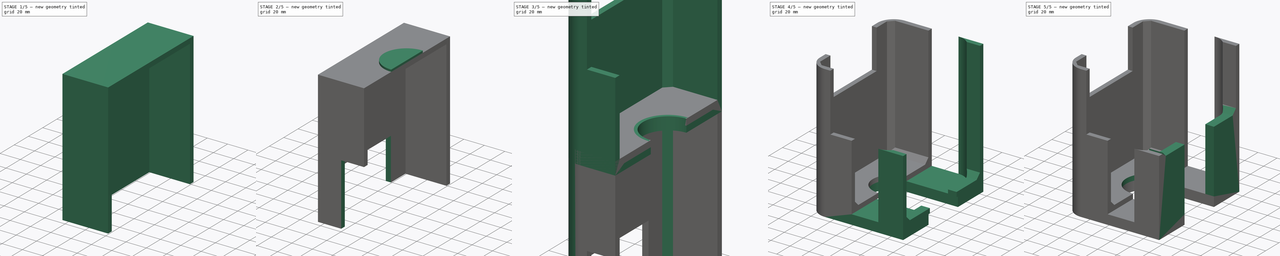
[diagram: build sequence overview — one tinted view per stage of 5, left to right]
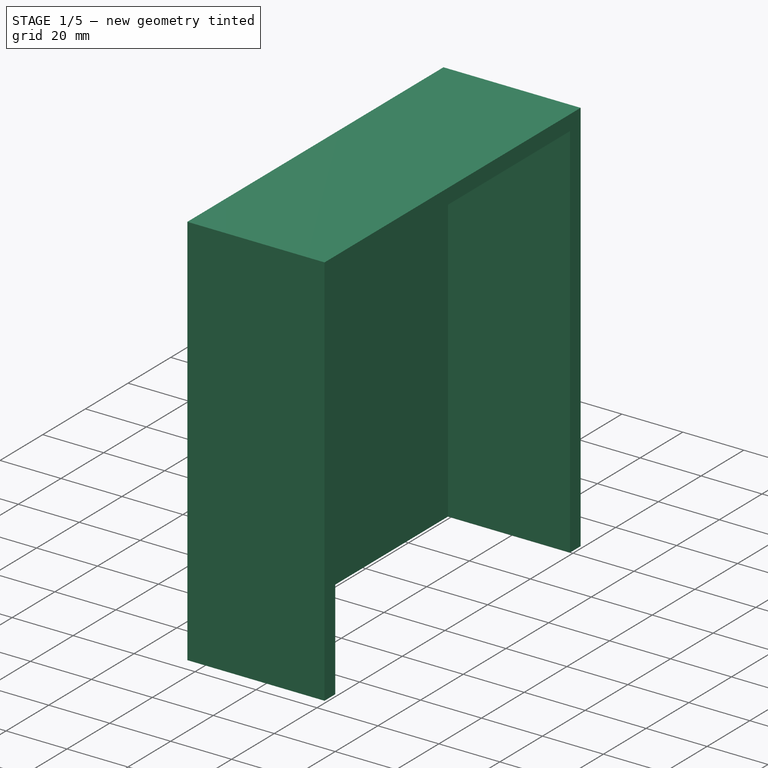
[diagram: stage 1 of 5 — iso view after this stage's code; geometry added in this stage tinted green]
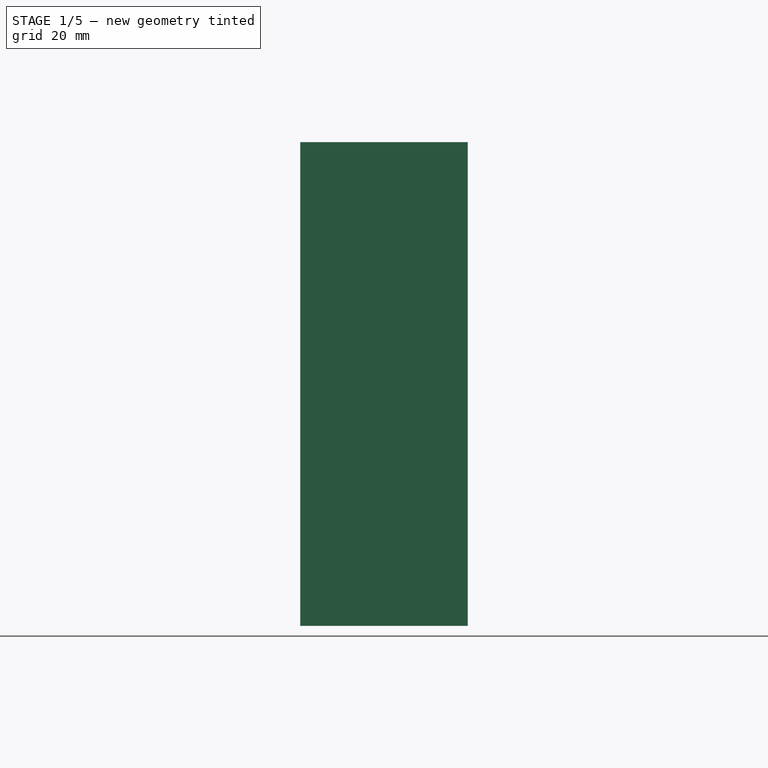
[diagram: stage 1 of 5 — front view after this stage's code; geometry added in this stage tinted green]
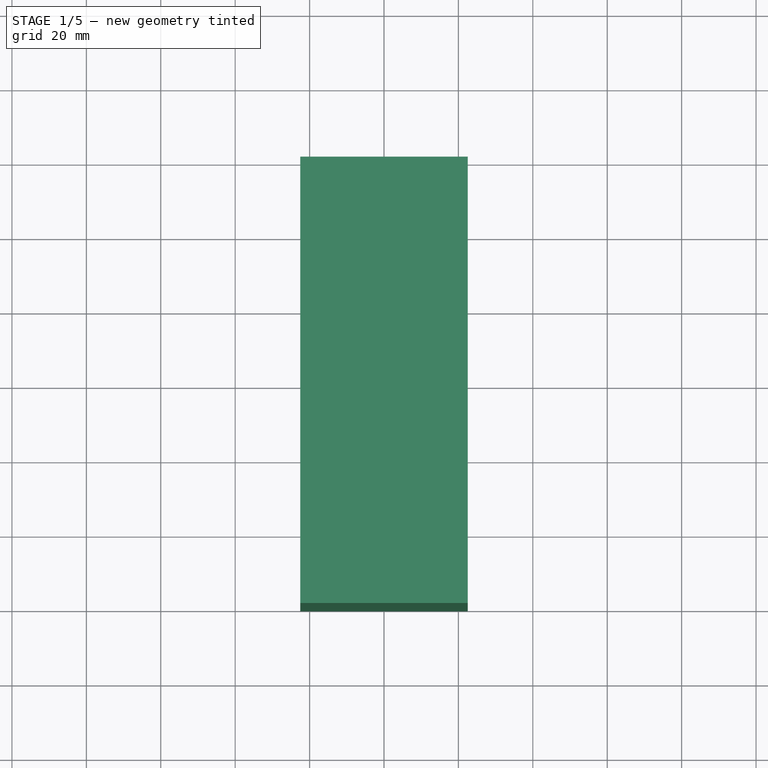
[diagram: stage 1 of 5 — top view after this stage's code; geometry added in this stage tinted green]
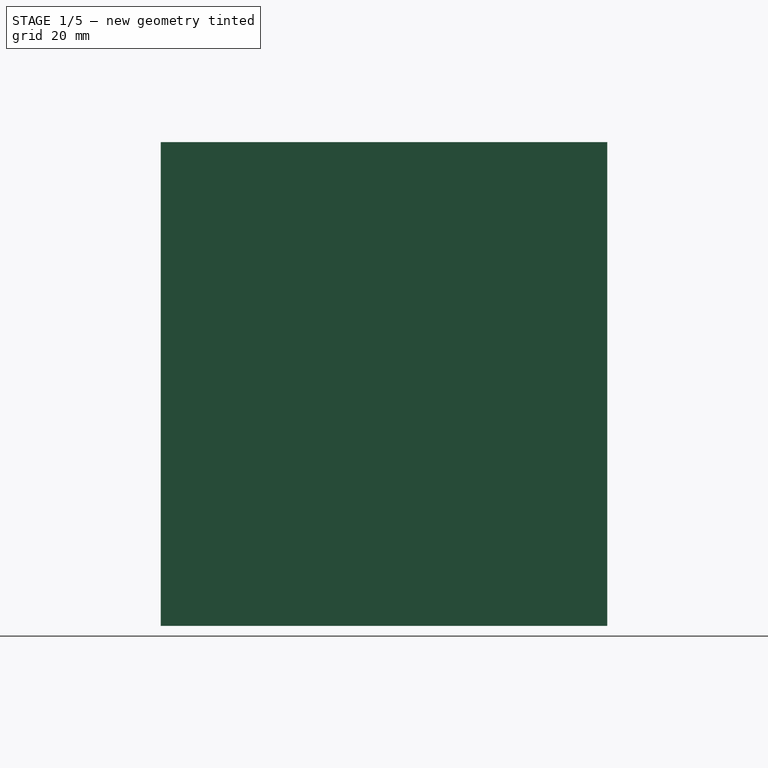
[diagram: stage 1 of 5 — right view after this stage's code; geometry added in this stage tinted green]
FCSTD DOCUMENT  (FreeCAD 1.0R39109 (Git))
Label: protection of reactor
License: All rights reserved
LicenseURL: https://en.wikipedia.org/wiki/All_rights_reserved
objects: Sketcher::SketchObject×9, PartDesign::Pad×8, PartDesign::Pocket×7, PartDesign::Body×4, PartDesign::FeatureBase×3, Part::Refine×3, PartDesign::Fillet×1, PartDesign::Chamfer×1, Part::Feature×1, Part::FeaturePython×1
note: 84 computed .brp shape members not serialized (recipe doc carries the construction recipe); baked Part::Feature solids carry a one-line shape summary decoded from their .brp

FEATURE [Sketcher::SketchObject] Sketch
  ArcFitTolerance = 1e-06
  AttachmentSupport = -> [XY_Plane]
  FullyConstrained = true
  MakeInternals = false
  MapMode = 5
  sketch-geometry (5):
    g0: LineSegment StartX=22.5 StartY=-60 StartZ=0 EndX=22.5 EndY=60 EndZ=0
    g1: LineSegment StartX=22.5 StartY=60 StartZ=0 EndX=-22.5 EndY=60 EndZ=0
    g2: LineSegment StartX=-22.5 StartY=60 StartZ=0 EndX=-22.5 EndY=-60 EndZ=0
    g3: LineSegment StartX=-22.5 StartY=-60 StartZ=0 EndX=22.5 EndY=-60 EndZ=0
    g4: GeomPoint [constr] X=0 Y=0 Z=0
  constraints (12):
    c: Coincident(g0,g1)
    c: Coincident(g1,g2)
    c: Coincident(g2,g3)
    c: Coincident(g3,g0)
    c: Vertical(g0)
    c: Vertical(g2)
    c: Horizontal(g1)
    c: Horizontal(g3)
    c: Symmetric(g2,g0,g4)
    c: Coincident(g4,g-1)
    c: Distance(g1) = 45
    c: Distance(g2) = 120
FEATURE [PartDesign::Pad] Pad
  Direction = (0,0,1)
  Length = 5
  Length2 = 10
  Profile = -> Sketch
  ReferenceAxis = -> Sketch [N_Axis]
  Refine = true
  Suppressed = false
  Type = 0
FEATURE [Sketcher::SketchObject] Sketch001
  ArcFitTolerance = 1e-06
  AttachmentSupport = -> [Pad]
  FullyConstrained = true
  MakeInternals = false
  MapMode = 5
  Placement = pos=(0,0,5) rot=(0,0,1;0rad)
  sketch-geometry (5):
    g0: LineSegment StartX=-17.5 StartY=-60 StartZ=0 EndX=-17.5 EndY=60 EndZ=0
    g1: LineSegment StartX=-17.5 StartY=60 StartZ=0 EndX=-22.5 EndY=60 EndZ=0
    g2: LineSegment StartX=-22.5 StartY=60 StartZ=0 EndX=-22.5 EndY=-60 EndZ=0
    g3: LineSegment StartX=-22.5 StartY=-60 StartZ=0 EndX=-17.5 EndY=-60 EndZ=0
    g4: GeomPoint [constr] X=-20 Y=0 Z=0
  constraints (13):
    c: Coincident(g0,g1)
    c: Coincident(g1,g2)
    c: Coincident(g2,g3)
    c: Coincident(g3,g0)
    c: Vertical(g0)
    c: Vertical(g2)
    c: Horizontal(g1)
    c: Horizontal(g3)
    c: Symmetric(g2,g0,g4)
    c: PointOnObject(g4,g-1)
    c: Distance(g0) = 120
    c: Distance(g1) = 5
    c: Distance(g-1,g4) = 20
FEATURE [PartDesign::Pad] Pad001
  BaseFeature = -> Pad
  Direction = (0,0,1)
  Length = 130
  Length2 = 10
  Profile = -> Sketch001
  ReferenceAxis = -> Sketch001 [N_Axis]
  Refine = true
  Reversed = true
  Suppressed = false
  Type = 0
FEATURE [Sketcher::SketchObject] Sketch002
  ArcFitTolerance = 1e-06
  AttachmentSupport = -> [Pad001]
  FullyConstrained = true
  MakeInternals = false
  MapMode = 5
  Placement = pos=(0,0,0) rot=(1,0,0;3.14159rad)
  sketch-geometry (5):
    g0: LineSegment StartX=-22.5 StartY=55 StartZ=0 EndX=22.5 EndY=55 EndZ=0
    g1: LineSegment StartX=22.5 StartY=55 StartZ=0 EndX=22.5 EndY=60 EndZ=0
    g2: LineSegment StartX=22.5 StartY=60 StartZ=0 EndX=-22.5 EndY=60 EndZ=0
    g3: LineSegment StartX=-22.5 StartY=60 StartZ=0 EndX=-22.5 EndY=55 EndZ=0
    g4: GeomPoint [constr] X=0 Y=57.5 Z=0
  constraints (13):
    c: Coincident(g0,g1)
    c: Coincident(g1,g2)
    c: Coincident(g2,g3)
    c: Coincident(g3,g0)
    c: Horizontal(g0)
    c: Horizontal(g2)
    c: Vertical(g1)
    c: Vertical(g3)
    c: Symmetric(g2,g0,g4)
    c: PointOnObject(g4,g-2)
    c: Distance(g2) = 45
    c: Distance(g1) = 5
    c: Distance(g-1,g4) = 57.5
FEATURE [PartDesign::Pad] Pad002
  BaseFeature = -> Pad001
  Direction = (0,0,-1)
  Length = 125
  Length2 = 10
  Profile = -> Sketch002
  ReferenceAxis = -> Sketch002 [N_Axis]
  Refine = true
  Suppressed = false
  Type = 0
FEATURE [Sketcher::SketchObject] Sketch003
  ArcFitTolerance = 1e-06
  AttachmentSupport = -> [Pad002]
  FullyConstrained = true
  MakeInternals = false
  MapMode = 5
  Placement = pos=(0,0,0) rot=(1,0,0;3.14159rad)
  sketch-geometry (5):
    g0: LineSegment StartX=-22.5 StartY=-55 StartZ=0 EndX=-22.5 EndY=-60 EndZ=0
    g1: LineSegment StartX=-22.5 StartY=-60 StartZ=0 EndX=22.5 EndY=-60 EndZ=0
    g2: LineSegment StartX=22.5 StartY=-60 StartZ=0 EndX=22.5 EndY=-55 EndZ=0
    g3: LineSegment StartX=22.5 StartY=-55 StartZ=0 EndX=-22.5 EndY=-55 EndZ=0
    g4: GeomPoint [constr] X=0 Y=-57.5 Z=0
  constraints (13):
    c: Coincident(g0,g1)
    c: Coincident(g1,g2)
    c: Coincident(g2,g3)
    c: Coincident(g3,g0)
    c: Vertical(g0)
    c: Vertical(g2)
    c: Horizontal(g1)
    c: Horizontal(g3)
    c: Symmetric(g2,g0,g4)
    c: PointOnObject(g4,g-2)
    c: Distance(g2) = 5
    c: Distance(g3) = 45
    c: Distance(g-1,g4) = 57.5
FEATURE [PartDesign::Pad] Pad003
  BaseFeature = -> Pad002
  Direction = (0,0,-1)
  Length = 125
  Length2 = 10
  Profile = -> Sketch003
  ReferenceAxis = -> Sketch003 [N_Axis]
  Refine = true
  Suppressed = false
  Type = 0
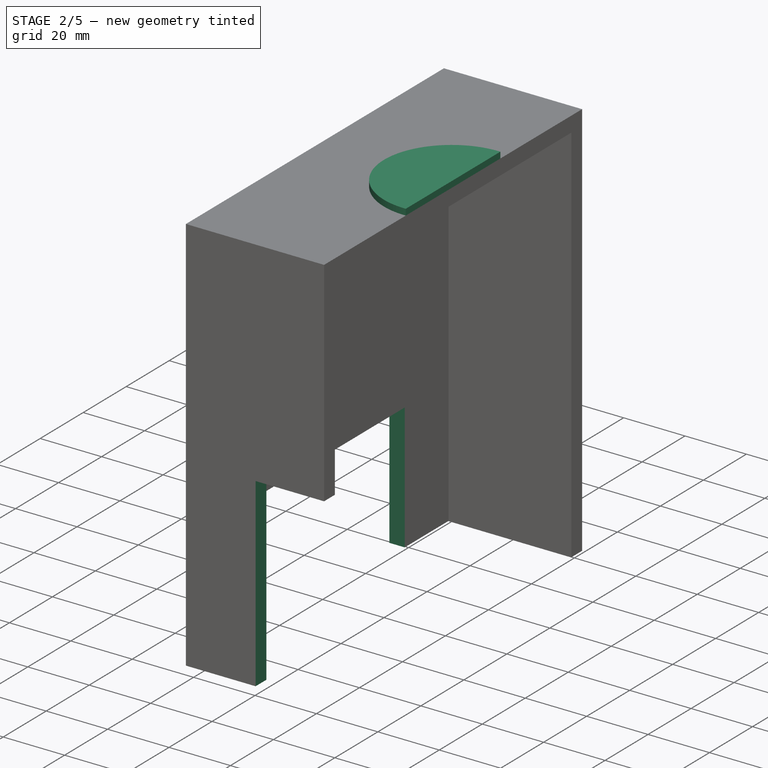
[diagram: stage 2 of 5 — iso view after this stage's code; geometry added in this stage tinted green]
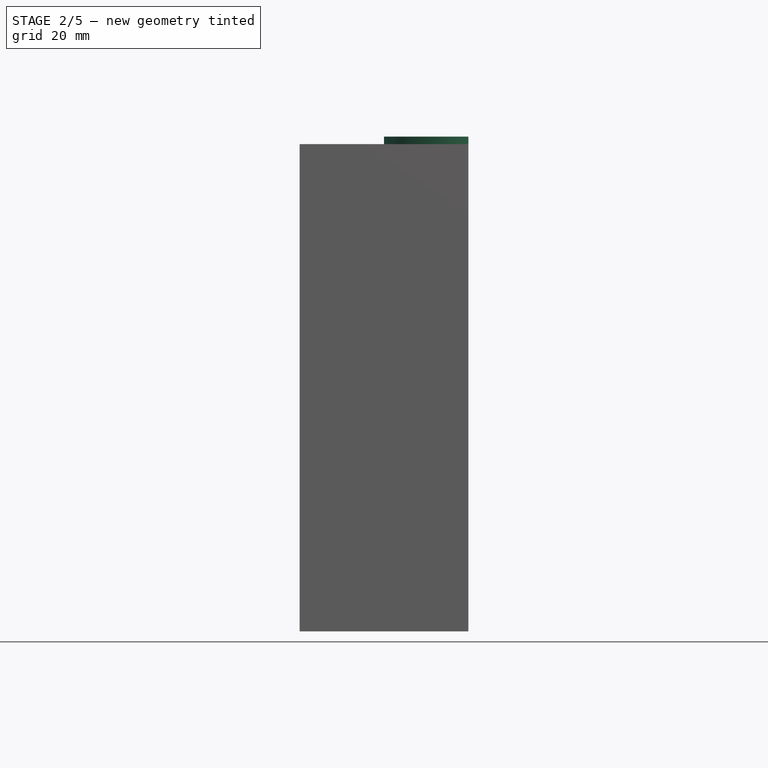
[diagram: stage 2 of 5 — front view after this stage's code; geometry added in this stage tinted green]
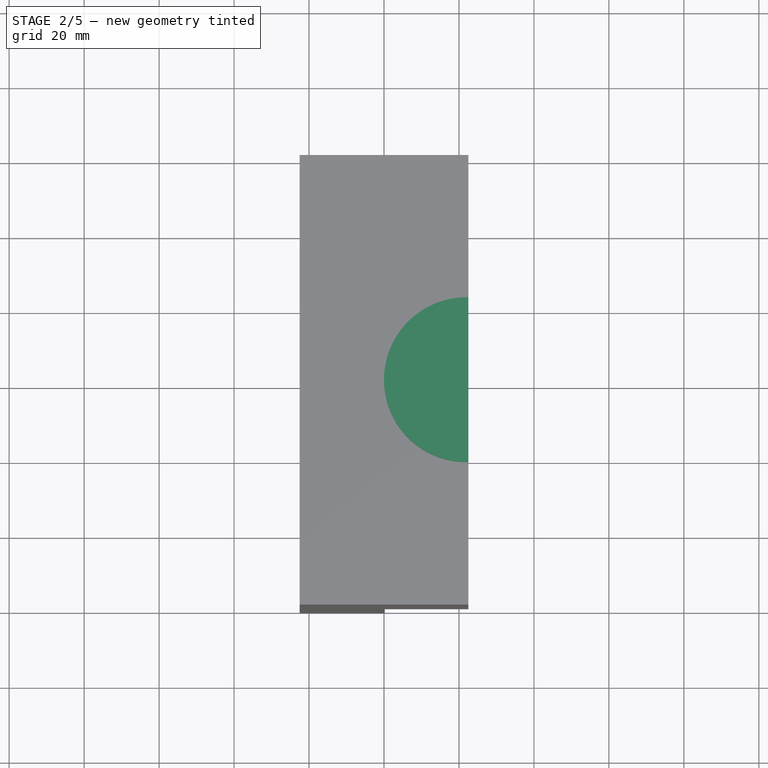
[diagram: stage 2 of 5 — top view after this stage's code; geometry added in this stage tinted green]
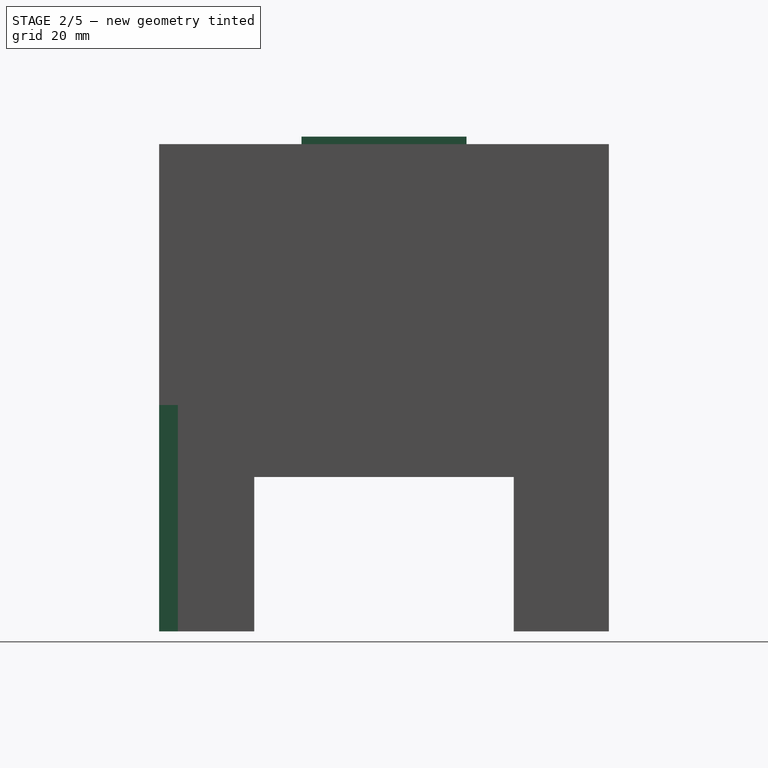
[diagram: stage 2 of 5 — right view after this stage's code; geometry added in this stage tinted green]
FEATURE [Sketcher::SketchObject] Sketch004
  ArcFitTolerance = 1e-06
  AttachmentSupport = -> [Pad003]
  FullyConstrained = false
  MakeInternals = false
  MapMode = 5
  Placement = pos=(0,-60,0) rot=(1,0,0;1.5708rad)
  sketch-geometry (5):
    g0: LineSegment StartX=0.198597 StartY=-64.5926 StartZ=0 EndX=0.198597 EndY=-138.915 EndZ=0
    g1: LineSegment StartX=0.198597 StartY=-138.915 StartZ=0 EndX=67.8513 EndY=-138.915 EndZ=0
    g2: LineSegment StartX=67.8513 StartY=-138.915 StartZ=0 EndX=67.8513 EndY=-64.5926 EndZ=0
    g3: LineSegment StartX=67.8513 StartY=-64.5926 StartZ=0 EndX=0.198597 EndY=-64.5926 EndZ=0
    g4: GeomPoint [constr] X=34.0249 Y=-101.754 Z=0
  constraints (9):
    c: Coincident(g0,g1)
    c: Coincident(g1,g2)
    c: Coincident(g2,g3)
    c: Coincident(g3,g0)
    c: Vertical(g0)
    c: Vertical(g2)
    c: Horizontal(g1)
    c: Horizontal(g3)
    c: Symmetric(g2,g0,g4)
FEATURE [PartDesign::Pocket] Pocket
  BaseFeature = -> Pad003
  Direction = (0,1,-2e-16)
  Length = 5
  Length2 = 5
  Profile = -> Sketch004
  ReferenceAxis = -> Sketch004 [N_Axis]
  Refine = true
  Suppressed = false
  Type = 0
FEATURE [Sketcher::SketchObject] Sketch005
  ArcFitTolerance = 1e-06
  AttachmentSupport = -> [Pocket]
  FullyConstrained = false
  MakeInternals = false
  MapMode = 5
  Placement = pos=(-22.5,0,0) rot=(0.57735,-0.57735,-0.57735;2.0944rad)
  sketch-geometry (5):
    g0: LineSegment StartX=34.6247 StartY=-83.8184 StartZ=0 EndX=-34.6247 EndY=-83.8184 EndZ=0
    g1: LineSegment StartX=-34.6247 StartY=-83.8184 StartZ=0 EndX=-34.6247 EndY=-128.843 EndZ=0
    g2: LineSegment StartX=-34.6247 StartY=-128.843 StartZ=0 EndX=34.6247 EndY=-128.843 EndZ=0
    g3: LineSegment StartX=34.6247 StartY=-128.843 StartZ=0 EndX=34.6247 EndY=-83.8184 EndZ=0
    g4: GeomPoint [constr] X=0 Y=-106.331 Z=0
  constraints (10):
    c: Coincident(g0,g1)
    c: Coincident(g1,g2)
    c: Coincident(g2,g3)
    c: Coincident(g3,g0)
    c: Horizontal(g0)
    c: Horizontal(g2)
    c: Vertical(g1)
    c: Vertical(g3)
    c: Symmetric(g2,g0,g4)
    c: PointOnObject(g4,g-2)
FEATURE [PartDesign::Pocket] Pocket001
  BaseFeature = -> Pocket
  Direction = (1,0,0)
  Length = 5
  Length2 = 5
  Profile = -> Sketch005
  ReferenceAxis = -> Sketch005 [N_Axis]
  Refine = true
  Suppressed = false
  Type = 0
FEATURE [Sketcher::SketchObject] Sketch006
  ArcFitTolerance = 1e-06
  AttachmentSupport = -> [Pocket001]
  FullyConstrained = true
  MakeInternals = false
  MapMode = 5
  Placement = pos=(0,0,5) rot=(0,0,1;0rad)
  sketch-geometry (1):
    g0: Circle CenterX=22 CenterY=0 CenterZ=0 NormalX=0 NormalY=0 NormalZ=1 AngleXU=0 Radius=22
  constraints (3):
    c: Diameter(g0) = 44
    c: PointOnObject(g0,g-1)
    c: Tangent(g0,g-2)
FEATURE [PartDesign::Pad] Pad004
  BaseFeature = -> Pocket001
  Direction = (0,0,1)
  Length = 2
  Length2 = 10
  Profile = -> Sketch006
  ReferenceAxis = -> Sketch006 [N_Axis]
  Refine = true
  Suppressed = false
  Type = 0
FEATURE [Sketcher::SketchObject] Sketch007
  ArcFitTolerance = 1e-06
  AttachmentSupport = -> [Pad004]
  FullyConstrained = false
  MakeInternals = false
  MapMode = 5
  Placement = pos=(0,0,7) rot=(0,0,1;0rad)
  sketch-geometry (5):
    g0: LineSegment StartX=44.5 StartY=-58.2905 StartZ=0 EndX=44.5 EndY=58.2905 EndZ=0
    g1: LineSegment StartX=44.5 StartY=58.2905 StartZ=0 EndX=22.5 EndY=58.2905 EndZ=0
    g2: LineSegment StartX=22.5 StartY=58.2905 StartZ=0 EndX=22.5 EndY=-58.2905 EndZ=0
    g3: LineSegment StartX=22.5 StartY=-58.2905 StartZ=0 EndX=44.5 EndY=-58.2905 EndZ=0
    g4: GeomPoint [constr] X=33.5 Y=0 Z=0
  constraints (12):
    c: Coincident(g0,g1)
    c: Coincident(g1,g2)
    c: Coincident(g2,g3)
    c: Coincident(g3,g0)
    c: Vertical(g0)
    c: Vertical(g2)
    c: Horizontal(g1)
    c: Horizontal(g3)
    c: Symmetric(g2,g0,g4)
    c: PointOnObject(g4,g-1)
    c: Distance(g1) = 22
    c: Distance(g-1,g4) = 33.5
FEATURE [PartDesign::Pocket] Pocket002
  BaseFeature = -> Pad004
  Direction = (0,0,-1)
  Length = 5
  Length2 = 5
  Profile = -> Sketch007
  ReferenceAxis = -> Sketch007 [N_Axis]
  Refine = true
  Suppressed = false
  Type = 0
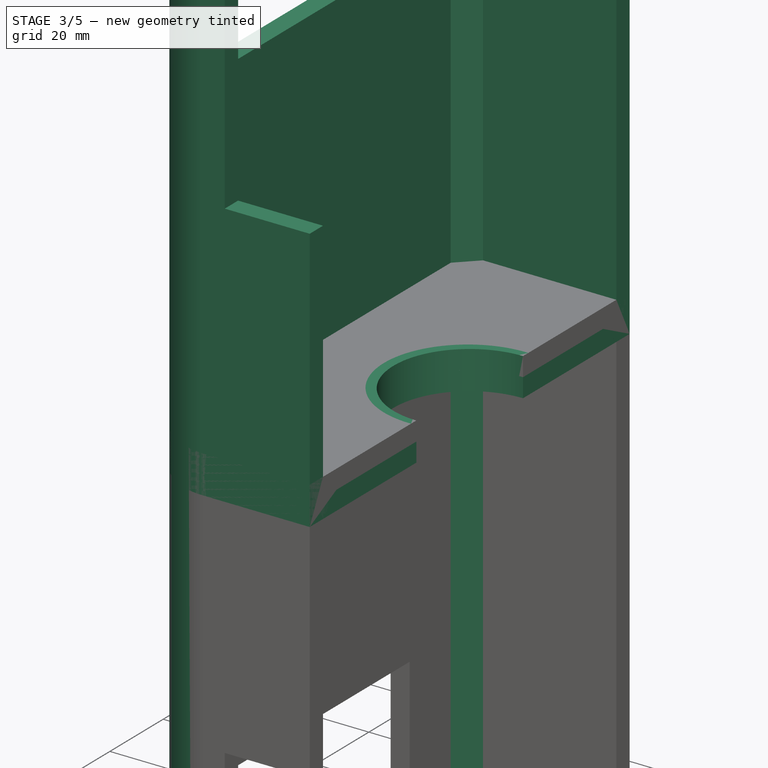
[diagram: stage 3 of 5 — iso view after this stage's code; geometry added in this stage tinted green]
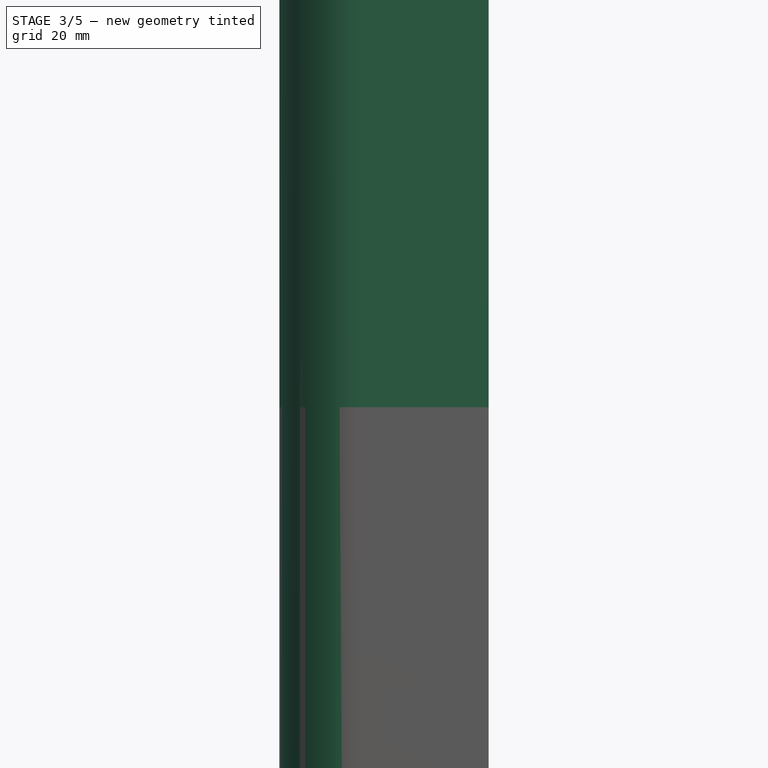
[diagram: stage 3 of 5 — front view after this stage's code; geometry added in this stage tinted green]
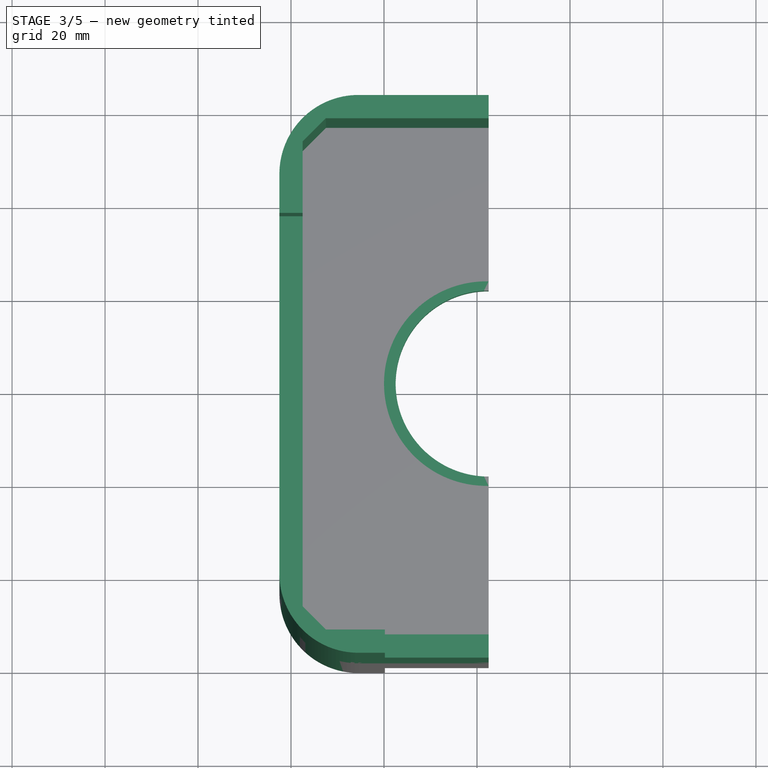
[diagram: stage 3 of 5 — top view after this stage's code; geometry added in this stage tinted green]
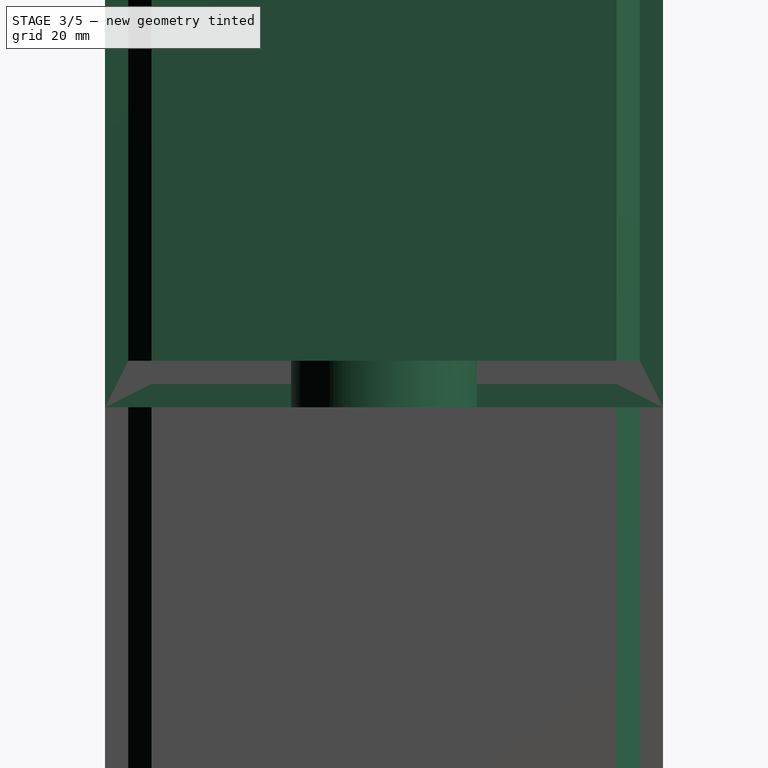
[diagram: stage 3 of 5 — right view after this stage's code; geometry added in this stage tinted green]
FEATURE [Sketcher::SketchObject] Sketch008
  ArcFitTolerance = 1e-06
  AttachmentSupport = -> [Pocket002]
  FullyConstrained = true
  MakeInternals = false
  MapMode = 5
  Placement = pos=(0,0,7) rot=(0,0,1;0rad)
  sketch-geometry (1):
    g0: Circle CenterX=22.5 CenterY=0 CenterZ=0 NormalX=0 NormalY=0 NormalZ=1 AngleXU=0 Radius=20
  constraints (3):
    c: Diameter(g0) = 40
    c: PointOnObject(g0,g-1)
    c: Distance(g-1,g0) = 22.5
FEATURE [PartDesign::Pocket] Pocket003
  BaseFeature = -> Pocket002
  Direction = (0,0,-1)
  Length = 7
  Length2 = 5
  Profile = -> Sketch008
  ReferenceAxis = -> Sketch008 [N_Axis]
  Refine = true
  Suppressed = false
  Type = 0
FEATURE [PartDesign::Pocket] Pocket004
  BaseFeature = -> Pocket003
  Direction = (0,0,-1)
  Length = 2
  Length2 = 5
  Profile = -> Pocket003 [Face13]
  Suppressed = false
  Type = 0
FEATURE [PartDesign::Fillet] Fillet
  Base = -> Pocket004 [Edge7,Edge13]
  BaseFeature = -> Pocket004
  Radius = 17
  SupportTransform = false
  Suppressed = false
  UseAllEdges = false
FEATURE [PartDesign::Chamfer] Chamfer
  Angle = 45
  Base = -> Fillet [Edge53,Edge57,Edge52,Edge56]
  BaseFeature = -> Fillet
  ChamferType = 0
  FlipDirection = false
  Size = 5
  Size2 = 1
  SupportTransform = false
  Suppressed = false
  UseAllEdges = false
FEATURE [PartDesign::Body] Body  label="InsideBody"
  AllowCompound = false
  Group = -> [Sketch,Pad,Sketch001,Pad001,Sketch002,Pad002,Sketch003,Pad003,Sketch004,Pocket,Sketch005,Pocket001,Sketch006,Pad004,Sketch007,Pocket002,Sketch008,Pocket003,Pocket004,Fillet,Chamfer]
  Origin = -> Origin
  Placement = pos=(45,0,5.5e-15) rot=(0,1,0;3.14159rad)
  Tip = -> Chamfer
FEATURE [Part::Feature] Part__Mirroring001  label="Body001 (Mirror #1)001"
  shape: bbox 45 x 120 x 130 mm, 25 faces (baked)
FEATURE [PartDesign::FeatureBase] BaseFeature
  BaseFeature = -> Part__Mirroring001
  Suppressed = false
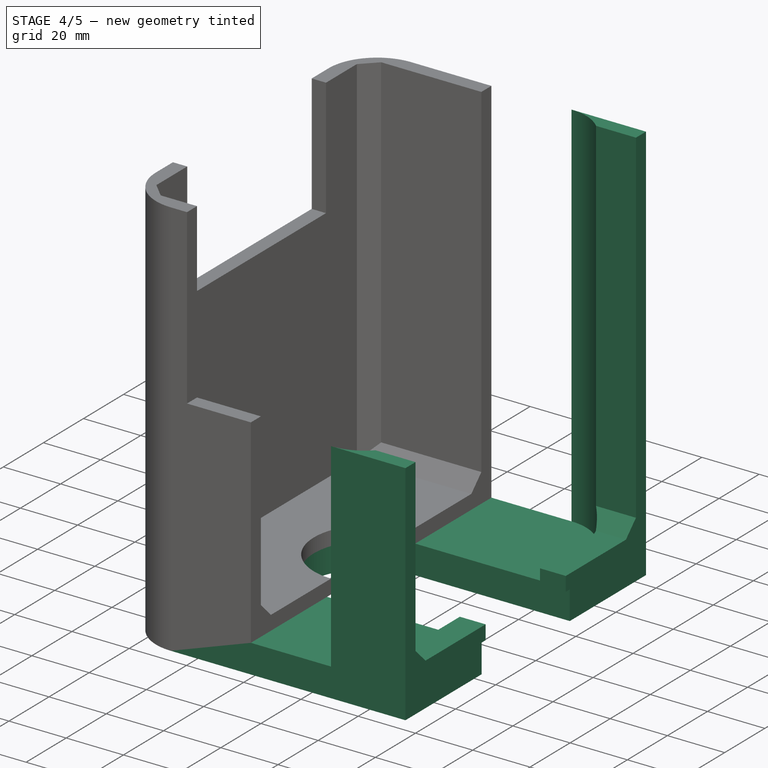
[diagram: stage 4 of 5 — iso view after this stage's code; geometry added in this stage tinted green]
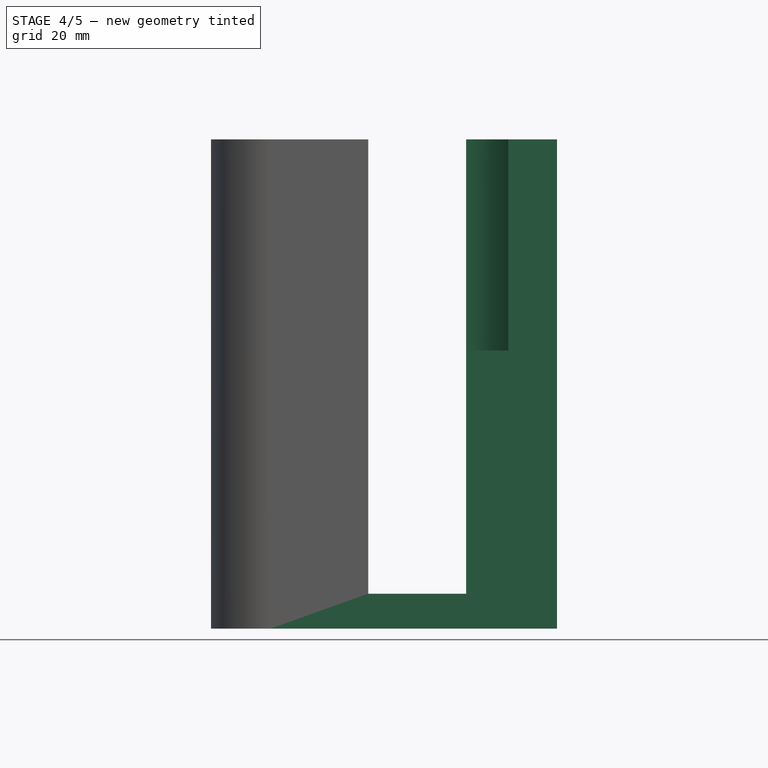
[diagram: stage 4 of 5 — front view after this stage's code; geometry added in this stage tinted green]
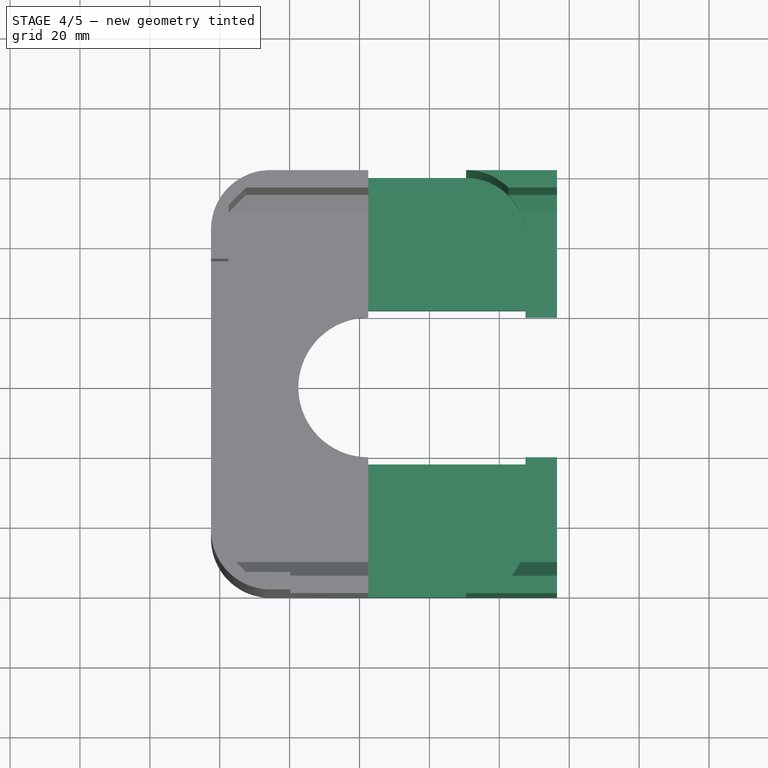
[diagram: stage 4 of 5 — top view after this stage's code; geometry added in this stage tinted green]
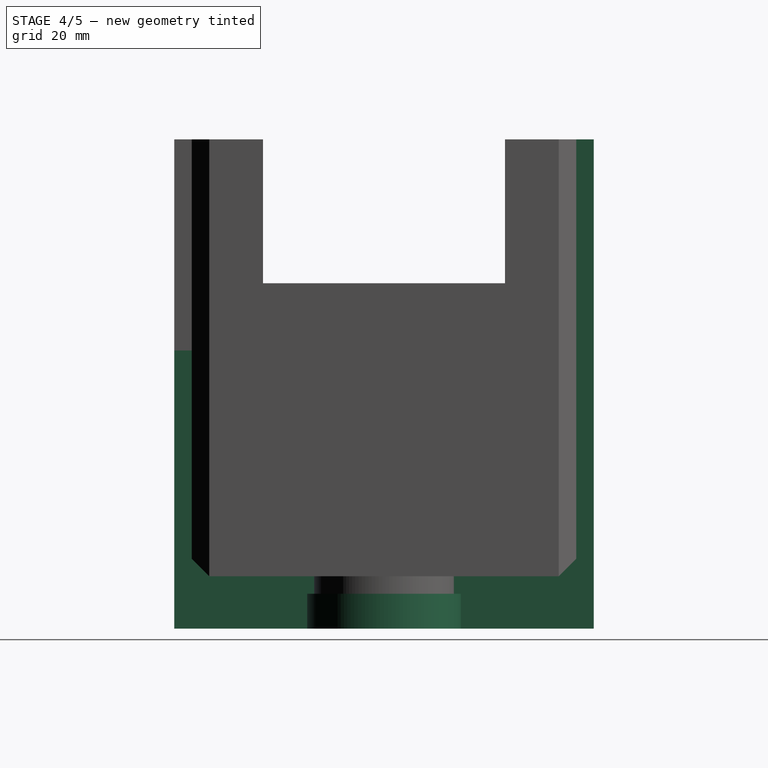
[diagram: stage 4 of 5 — right view after this stage's code; geometry added in this stage tinted green]
FEATURE [PartDesign::Pad] Pad005
  BaseFeature = -> BaseFeature
  Direction = (0,0,-1)
  Length = 10
  Length2 = 10
  Profile = -> BaseFeature [Face8]
  Suppressed = false
  Type = 0
FEATURE [PartDesign::Pad] Pad006
  BaseFeature = -> Pad005
  Direction = (1,0,0)
  Length = 54
  Length2 = 10
  Profile = -> Pad005 [Face29,Face16,Face8,Face1]
  Suppressed = false
  Type = 0
FEATURE [PartDesign::Body] Body001
  AllowCompound = false
  BaseFeature = -> Part__Mirroring001
  Group = -> [BaseFeature,Pad005,Pad006]
  Origin = -> Origin001
  Tip = -> Pad006
FEATURE [Part::Refine] Body002
  Source = -> Body001
FEATURE [Part::Refine] Body003
  Source = -> Body
FEATURE [Part::FeaturePython] Cutout  # WARN: FeaturePython — macro-defined, semantics opaque (R4)
  Base = -> Body002
  Tolerance = 0
  Tool = -> Body003
FEATURE [PartDesign::FeatureBase] BaseFeature001
  BaseFeature = -> Cutout
  Suppressed = false
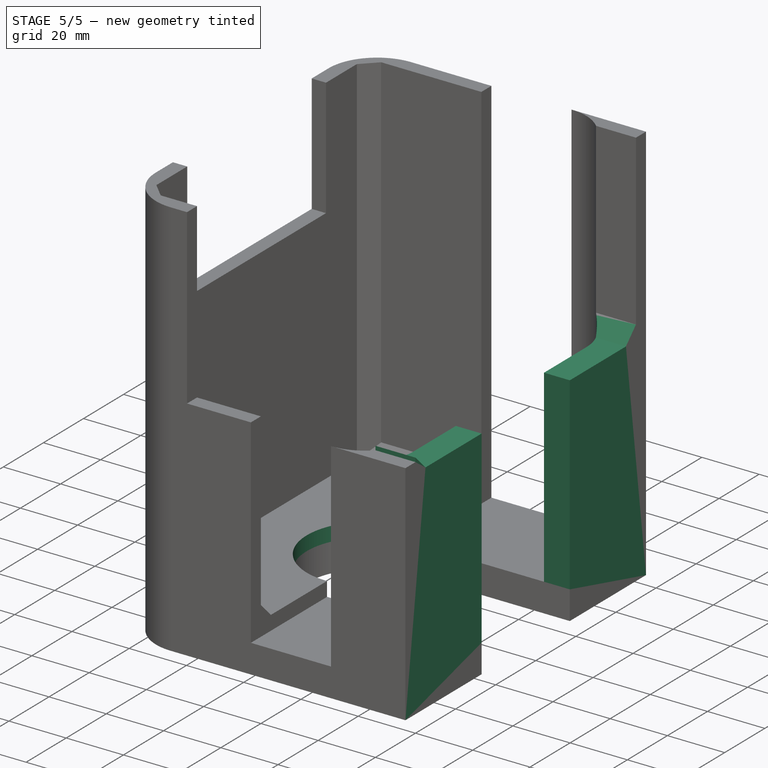
[diagram: stage 5 of 5 — iso view after this stage's code; geometry added in this stage tinted green]
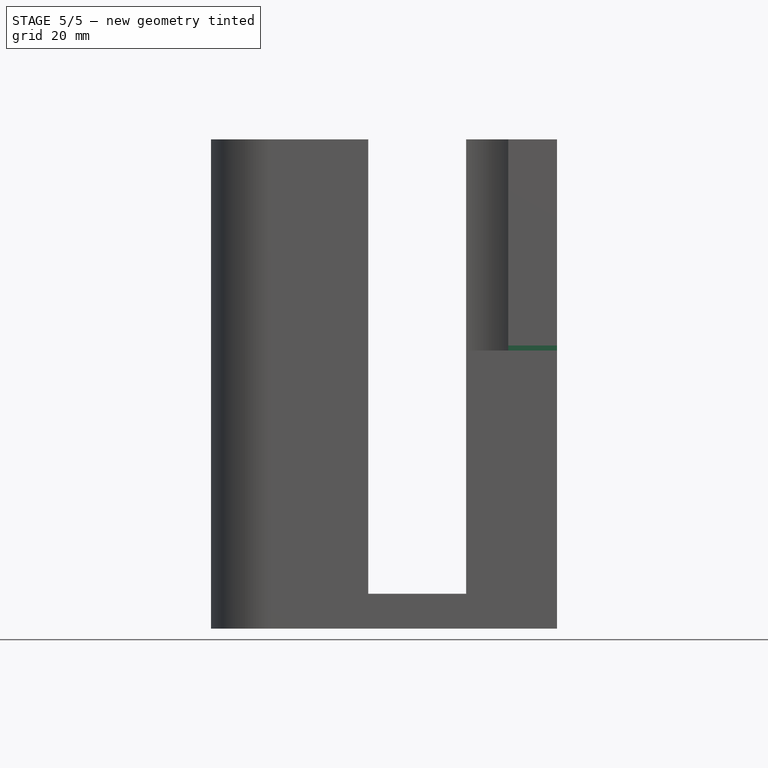
[diagram: stage 5 of 5 — front view after this stage's code; geometry added in this stage tinted green]
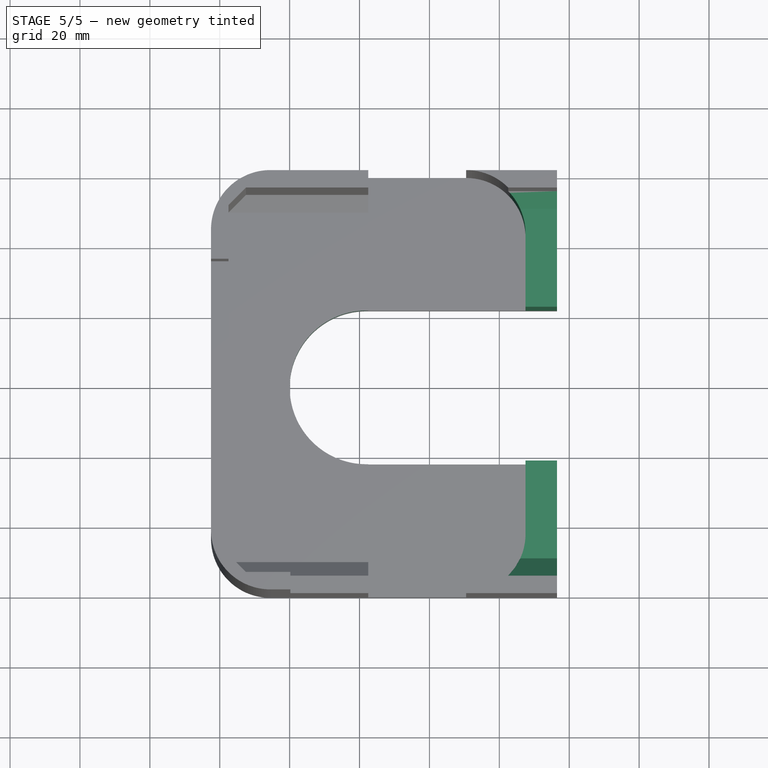
[diagram: stage 5 of 5 — top view after this stage's code; geometry added in this stage tinted green]
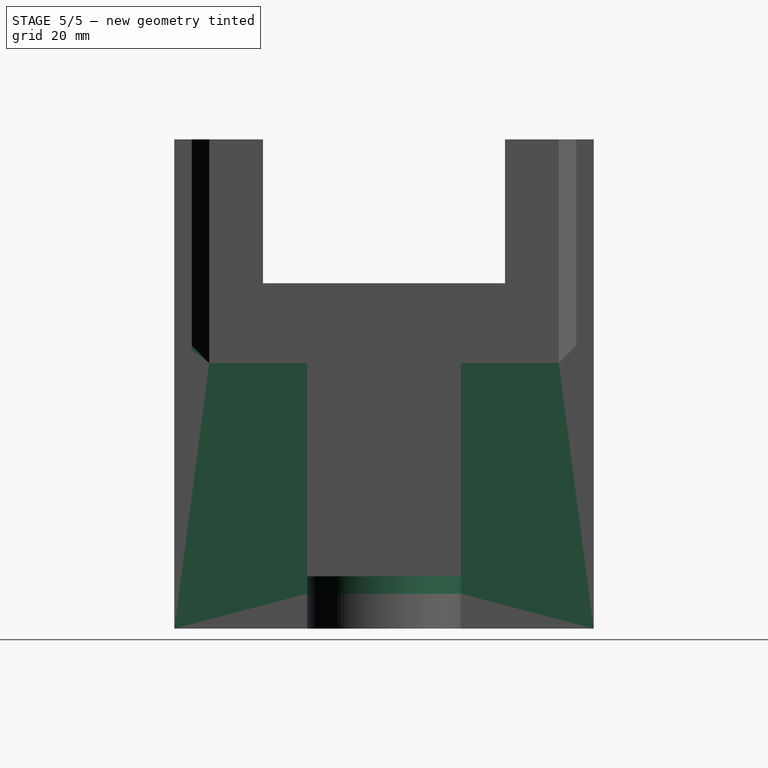
[diagram: stage 5 of 5 — right view after this stage's code; geometry added in this stage tinted green]
FEATURE [PartDesign::Pad] Pad007
  BaseFeature = -> BaseFeature001
  Direction = (0,0,1)
  Length = 61
  Length2 = 10
  Profile = -> BaseFeature001 [Face35,Face34,Face44,Face45]
  Suppressed = false
  Type = 0
FEATURE [PartDesign::Body] Body004
  AllowCompound = false
  BaseFeature = -> Cutout
  Group = -> [BaseFeature001,Pad007]
  Origin = -> Origin002
  Tip = -> Pad007
FEATURE [Part::Refine] Body005
  Source = -> Body004
FEATURE [PartDesign::FeatureBase] BaseFeature002
  BaseFeature = -> Body005
  Suppressed = false
FEATURE [PartDesign::Pocket] Pocket005
  BaseFeature = -> BaseFeature002
  Direction = (0,0,1)
  Length = 5
  Length2 = 5
  Profile = -> BaseFeature002 [Face21]
  Suppressed = false
  Type = 0
FEATURE [PartDesign::Pocket] Pocket006
  BaseFeature = -> Pocket005
  Direction = (0,0,1)
  Length = 66
  Length2 = 5
  Profile = -> Pocket005 [Face43,Face36]
  Suppressed = false
  Type = 0
FEATURE [PartDesign::Body] Body006  label="outsideBody"
  AllowCompound = false
  BaseFeature = -> Body005
  Group = -> [BaseFeature002,Pocket005,Pocket006]
  Origin = -> Origin003
  Tip = -> Pocket006
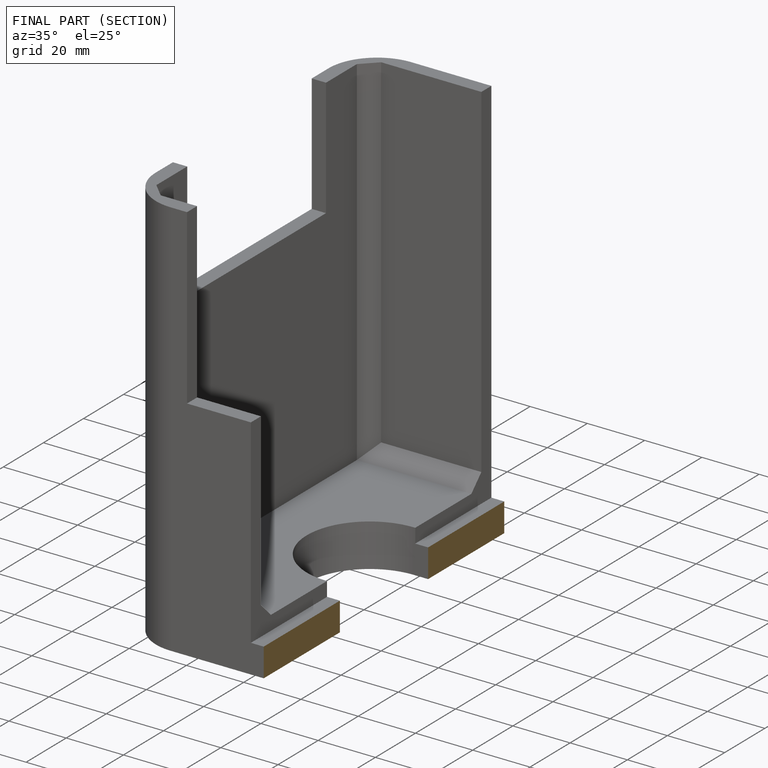
[diagram: finished part — half-section view (interior)]
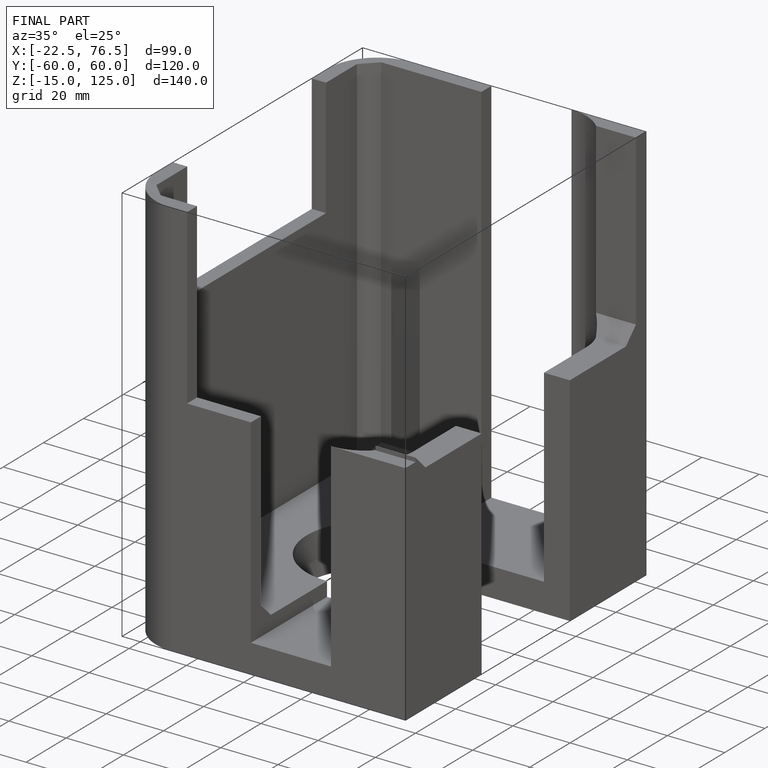
[diagram: finished part — iso view with bounding-box wireframe]
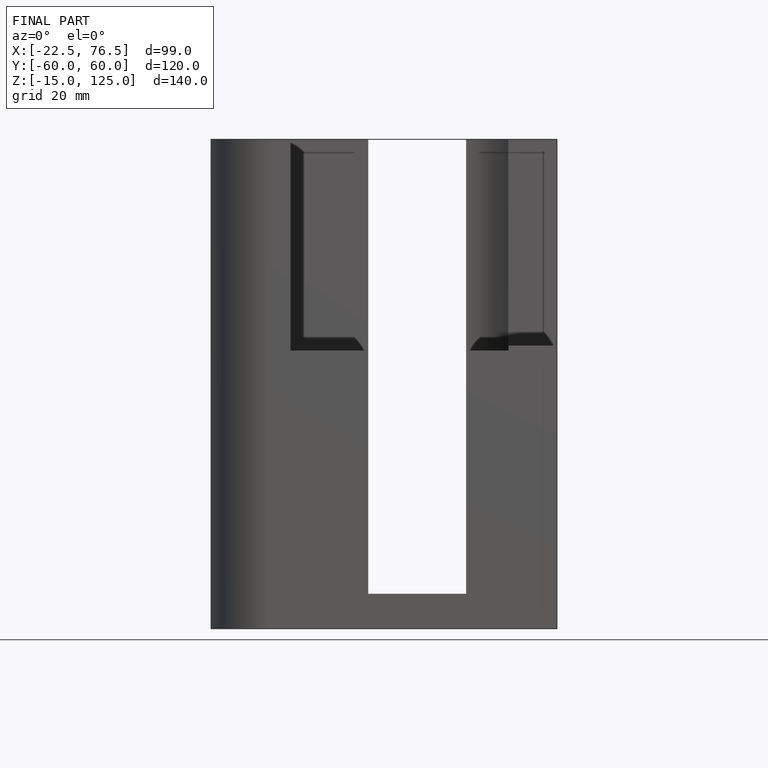
[diagram: finished part — front view with bounding-box wireframe]
